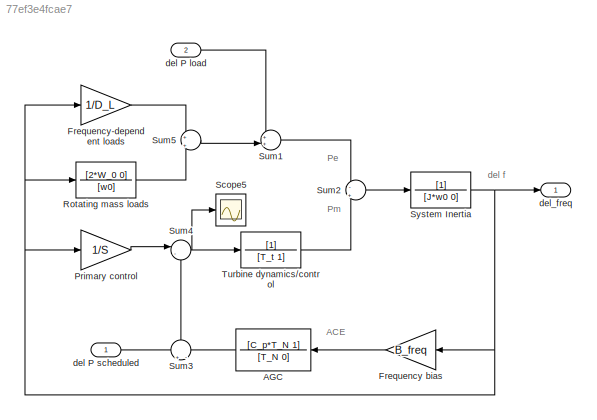
MODEL slx_77ef3e4fcae7
KIND model
CONFIG AbsTol = auto
CONFIG EnableMultiTasking = off
CONFIG FixedStep = auto
CONFIG MaxStep = auto
CONFIG MinStep = auto
CONFIG RelTol = 1e-3
CONFIG SampleTimeConstraint = Unconstrained
CONFIG Solver = VariableStepAuto
CONFIG SolverName = VariableStepAuto
CONFIG StartTime = 0.0
CONFIG StopTime = 3000
BLOCK [TransferFcn] AGC
  Denominator = [T_N 0]
  Numerator = [C_p*T_N 1]
BLOCK [Gain] Frequency bias
  Gain = B_freq
  OutDataTypeStr = Inherit: Inherit via internal rule
  ParamDataTypeStr = Inherit: Inherit via internal rule
  SaturateOnIntegerOverflow = off
BLOCK [Gain] Frequency-dependent loads
  Gain = 1/D_L
  OutDataTypeStr = Inherit: Inherit via internal rule
  ParamDataTypeStr = Inherit: Inherit via internal rule
  SaturateOnIntegerOverflow = off
BLOCK [Gain] Primary control
  Gain = 1/S
  OutDataTypeStr = Inherit: Inherit via internal rule
  ParamDataTypeStr = Inherit: Inherit via internal rule
  SaturateOnIntegerOverflow = off
BLOCK [TransferFcn] Rotating mass loads
  Denominator = [w0]
  Numerator = [2*W_0 0]
BLOCK [Scope] Scope5
  NumInputPorts = 1
  Ports = [1]
  ScopeSpecificationString = Simulink.scopes.TimeScopeBlockCfg('CurrentConfiguration', extmgr.ConfigurationSet(extmgr.Configuration('Core','General UI',true),extmgr.Configuration('Core','Source UI',true),extmgr.Configuration('Sources','WiredSimulink',true,'DataLoggingVariableName','ScopeData5'),extmgr.Configuration('Visuals','Time Domain',true,'SerializedDisplays',{struct('MinYLimReal','-11.79609','MaxYLimReal','106.16478','Y...<+1373ch>
BLOCK [Sum] Sum1
  IconShape = round
  InputSameDT = off
  Inputs = ++|
  OutDataTypeStr = Inherit: Inherit via internal rule
  Ports = [2, 1]
  SaturateOnIntegerOverflow = off
BLOCK [Sum] Sum2
  IconShape = round
  InputSameDT = off
  Inputs = -|+
  OutDataTypeStr = Inherit: Inherit via internal rule
  Ports = [2, 1]
  SaturateOnIntegerOverflow = off
BLOCK [Sum] Sum3
  IconShape = round
  InputSameDT = off
  Inputs = +|-
  OutDataTypeStr = Inherit: Inherit via internal rule
  Ports = [2, 1]
  SaturateOnIntegerOverflow = off
BLOCK [Sum] Sum4
  IconShape = round
  InputSameDT = off
  Inputs = |-+
  OutDataTypeStr = Inherit: Inherit via internal rule
  Ports = [2, 1]
  SaturateOnIntegerOverflow = off
BLOCK [Sum] Sum5
  IconShape = round
  InputSameDT = off
  Inputs = +|+
  OutDataTypeStr = Inherit: Inherit via internal rule
  Ports = [2, 1]
  SaturateOnIntegerOverflow = off
BLOCK [TransferFcn] System Inertia
  Denominator = [J*w0 0]
BLOCK [TransferFcn] Turbine dynamics//control
  Denominator = [T_t 1]
BLOCK [Inport] del P load
  IconDisplay = Port number
  Port = 2
BLOCK [Inport] del P scheduled
  IconDisplay = Port number
BLOCK [Outport] del_freq
  IconDisplay = Port number
ANNOTATION (root): ACE
ANNOTATION (root): Pe
ANNOTATION (root): Pm
ANNOTATION (root): del f
LINE AGC:1 -> Sum3:2
LINE Frequency bias:1 -> AGC:1
LINE Frequency-dependent loads:1 -> Sum5:1
LINE Primary control:1 -> Sum4:1
LINE Rotating mass loads:1 -> Sum5:2
LINE Sum1:1 -> Sum2:1
LINE Sum2:1 -> System Inertia:1
LINE Sum3:1 -> Sum4:2
NET Sum4:1 -> Scope5:1, Turbine dynamics//control:1
LINE Sum5:1 -> Sum1:2
NET System Inertia:1 -> Frequency bias:1, Frequency-dependent loads:1, Primary control:1, Rotating mass loads:1, del_freq:1
LINE Turbine dynamics//control:1 -> Sum2:2
LINE del P load:1 -> Sum1:1
LINE del P scheduled:1 -> Sum3:1
note: NET lines group one-source signal fan-out (src -> all destinations, sorted); 1:1 wires keep LINE
